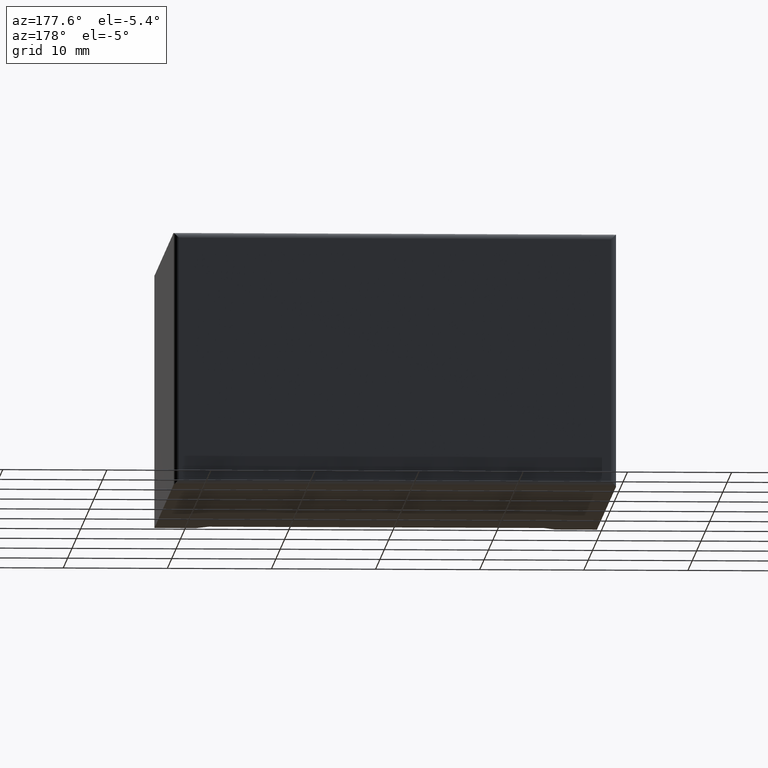
[diagram: clean part render]
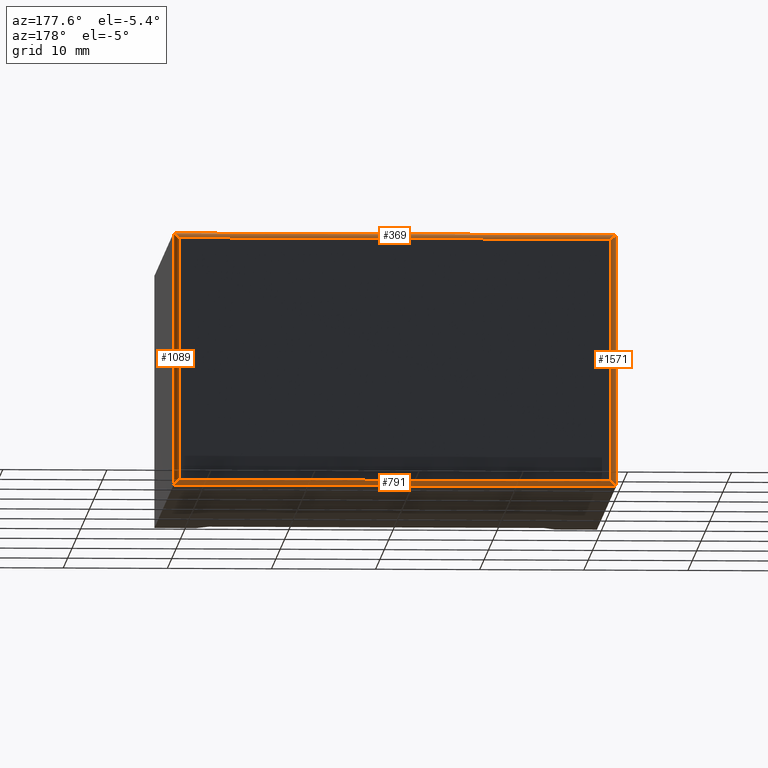
[diagram: same view with one multi-face feature highlighted, each face labeled with its STEP entity id]
A machine part, auxiliary view. The highlighted faces form ONE feature: a constant-radius fillet chain: 4 tangent blend faces with common blend radius 0.5 mm. The faces share edges in the B-rep.
Their STEP definitions:
[1] entity #1571 (Cylinder):
#37 = ORIENTED_EDGE ( 'NONE', *, *, #1860, .T. ) ;
#50 = CARTESIAN_POINT ( 'NONE',  ( 0.000000000000000000, 43.79999999999999716, 24.30000000000000071 ) ) ;
#57 =( BOUNDED_CURVE ( )  B_SPLINE_CURVE ( 3, ( #2199, #1073, #2671, #1986 ),
 .UNSPECIFIED., .F., .T. ) 
 B_SPLINE_CURVE_WITH_KNOTS ( ( 4, 4 ),
 ( 1.570796326794896780, 3.141592653589793116 ),
 .UNSPECIFIED. ) 
 CURVE ( )  GEOMETRIC_REPRESENTATION_ITEM ( )  RATIONAL_B_SPLINE_CURVE ( ( 1.000000000000000000, 0.8047378541243650485, 0.8047378541243650485, 1.000000000000000000 ) ) 
 REPRESENTATION_ITEM ( '' )  );
#102 = DIRECTION ( 'NONE',  ( -1.000000000000000000, 0.000000000000000000, 0.000000000000000000 ) ) ;
#133 = VERTEX_POINT ( 'NONE', #1943 ) ;
#157 = EDGE_CURVE ( 'NONE', #2770, #573, #57, .T. ) ;
#246 = CARTESIAN_POINT ( 'NONE',  ( 1.084202172485504434E-16, 44.09289321881345103, 24.30000000000000426 ) ) ;
#468 = CARTESIAN_POINT ( 'NONE',  ( 0.000000000000000000, 43.79999999999999716, 24.30000000000000071 ) ) ;
#508 = CARTESIAN_POINT ( 'NONE',  ( 0.5000000000000000000, 44.29999999999999716, 0.5000000000000004441 ) ) ;
#573 = VERTEX_POINT ( 'NONE', #1119 ) ;
#635 = CARTESIAN_POINT ( 'NONE',  ( 0.5000000000000000000, 44.29999999999999716, 23.80000000000000071 ) ) ;
#689 = CARTESIAN_POINT ( 'NONE',  ( 0.2071067811865475727, 44.29999999999999005, 24.09289321881344748 ) ) ;
#711 = EDGE_LOOP ( 'NONE', ( #37, #2759, #924, #2908 ) ) ;
#740 = CYLINDRICAL_SURFACE ( 'NONE', #2274, 0.5000000000000000000 ) ;
#924 = ORIENTED_EDGE ( 'NONE', *, *, #157, .T. ) ;
#994 = DIRECTION ( 'NONE',  ( 0.000000000000000000, 0.000000000000000000, -1.000000000000000000 ) ) ;
#997 = VERTEX_POINT ( 'NONE', #635 ) ;
#1073 = CARTESIAN_POINT ( 'NONE',  ( 0.2071067811865475172, 44.30000000000000426, 0.2071067811865479058 ) ) ;
#1119 = CARTESIAN_POINT ( 'NONE',  ( 0.000000000000000000, 43.79999999999999716, 0.000000000000000000 ) ) ;
#1138 = CARTESIAN_POINT ( 'NONE',  ( 0.5000000000000000000, 44.29999999999999716, 24.30000000000000071 ) ) ;
#1275 = LINE ( 'NONE', #50, #2437 ) ;
#1430 =( BOUNDED_CURVE ( )  B_SPLINE_CURVE ( 3, ( #468, #246, #689, #2301 ),
 .UNSPECIFIED., .F., .T. ) 
 B_SPLINE_CURVE_WITH_KNOTS ( ( 4, 4 ),
 ( 0.000000000000000000, 1.570796326794896558 ),
 .UNSPECIFIED. ) 
 CURVE ( )  GEOMETRIC_REPRESENTATION_ITEM ( )  RATIONAL_B_SPLINE_CURVE ( ( 1.000000000000000000, 0.8047378541243649375, 0.8047378541243649375, 1.000000000000000000 ) ) 
 REPRESENTATION_ITEM ( '' )  );
#1440 = LINE ( 'NONE', #1138, #1548 ) ;
#1503 = DIRECTION ( 'NONE',  ( 0.000000000000000000, 0.000000000000000000, -1.000000000000000000 ) ) ;
#1548 = VECTOR ( 'NONE', #2063, 1000.000000000000000 ) ;
#1571 = ADVANCED_FACE ( 'NONE', ( #1882 ), #740, .T. ) ;
#1694 = EDGE_CURVE ( 'NONE', #2770, #997, #1440, .T. ) ;
#1860 = EDGE_CURVE ( 'NONE', #133, #997, #1430, .T. ) ;
#1882 = FACE_OUTER_BOUND ( 'NONE', #711, .T. ) ;
#1943 = CARTESIAN_POINT ( 'NONE',  ( 0.000000000000000000, 43.79999999999999716, 24.30000000000000071 ) ) ;
#1986 = CARTESIAN_POINT ( 'NONE',  ( 0.000000000000000000, 43.79999999999999716, 0.000000000000000000 ) ) ;
#2063 = DIRECTION ( 'NONE',  ( -0.000000000000000000, -0.000000000000000000, 1.000000000000000000 ) ) ;
#2153 = CARTESIAN_POINT ( 'NONE',  ( 0.5000000000000000000, 43.79999999999999716, 24.30000000000000071 ) ) ;
#2199 = CARTESIAN_POINT ( 'NONE',  ( 0.5000000000000000000, 44.29999999999999716, 0.5000000000000004441 ) ) ;
#2274 = AXIS2_PLACEMENT_3D ( 'NONE', #2153, #994, #102 ) ;
#2301 = CARTESIAN_POINT ( 'NONE',  ( 0.5000000000000000000, 44.29999999999999716, 23.80000000000000071 ) ) ;
#2437 = VECTOR ( 'NONE', #1503, 1000.000000000000000 ) ;
#2443 = EDGE_CURVE ( 'NONE', #133, #573, #1275, .T. ) ;
#2671 = CARTESIAN_POINT ( 'NONE',  ( 1.442892915397364602E-16, 44.09289321881344392, 5.779701605339383077E-16 ) ) ;
#2759 = ORIENTED_EDGE ( 'NONE', *, *, #1694, .F. ) ;
#2770 = VERTEX_POINT ( 'NONE', #508 ) ;
#2908 = ORIENTED_EDGE ( 'NONE', *, *, #2443, .F. ) ;
[2] entity #791 (Cylinder):
#57 =( BOUNDED_CURVE ( )  B_SPLINE_CURVE ( 3, ( #2199, #1073, #2671, #1986 ),
 .UNSPECIFIED., .F., .T. ) 
 B_SPLINE_CURVE_WITH_KNOTS ( ( 4, 4 ),
 ( 1.570796326794896780, 3.141592653589793116 ),
 .UNSPECIFIED. ) 
 CURVE ( )  GEOMETRIC_REPRESENTATION_ITEM ( )  RATIONAL_B_SPLINE_CURVE ( ( 1.000000000000000000, 0.8047378541243650485, 0.8047378541243650485, 1.000000000000000000 ) ) 
 REPRESENTATION_ITEM ( '' )  );
#89 = DIRECTION ( 'NONE',  ( 0.000000000000000000, 0.000000000000000000, -1.000000000000000000 ) ) ;
#157 = EDGE_CURVE ( 'NONE', #2770, #573, #57, .T. ) ;
#215 = VECTOR ( 'NONE', #1635, 1000.000000000000000 ) ;
#328 = DIRECTION ( 'NONE',  ( 1.000000000000000000, 0.000000000000000000, 0.000000000000000000 ) ) ;
#371 = VECTOR ( 'NONE', #893, 1000.000000000000000 ) ;
#508 = CARTESIAN_POINT ( 'NONE',  ( 0.5000000000000000000, 44.29999999999999716, 0.5000000000000004441 ) ) ;
#573 = VERTEX_POINT ( 'NONE', #1119 ) ;
#632 = VERTEX_POINT ( 'NONE', #1597 ) ;
#779 =( BOUNDED_CURVE ( )  B_SPLINE_CURVE ( 3, ( #2812, #1401, #2525, #1901 ),
 .UNSPECIFIED., .F., .T. ) 
 B_SPLINE_CURVE_WITH_KNOTS ( ( 4, 4 ),
 ( 4.712388980384689674, 6.283185307179586232 ),
 .UNSPECIFIED. ) 
 CURVE ( )  GEOMETRIC_REPRESENTATION_ITEM ( )  RATIONAL_B_SPLINE_CURVE ( ( 1.000000000000000000, 0.8047378541243649375, 0.8047378541243649375, 1.000000000000000000 ) ) 
 REPRESENTATION_ITEM ( '' )  );
#791 = ADVANCED_FACE ( 'NONE', ( #2577 ), #2386, .T. ) ;
#893 = DIRECTION ( 'NONE',  ( 1.000000000000000000, -0.000000000000000000, -0.000000000000000000 ) ) ;
#897 = EDGE_CURVE ( 'NONE', #1202, #2770, #2334, .T. ) ;
#1073 = CARTESIAN_POINT ( 'NONE',  ( 0.2071067811865475172, 44.30000000000000426, 0.2071067811865479058 ) ) ;
#1119 = CARTESIAN_POINT ( 'NONE',  ( 0.000000000000000000, 43.79999999999999716, 0.000000000000000000 ) ) ;
#1120 = ORIENTED_EDGE ( 'NONE', *, *, #157, .F. ) ;
#1121 = ORIENTED_EDGE ( 'NONE', *, *, #1241, .F. ) ;
#1202 = VERTEX_POINT ( 'NONE', #1864 ) ;
#1241 = EDGE_CURVE ( 'NONE', #573, #632, #2796, .T. ) ;
#1401 = CARTESIAN_POINT ( 'NONE',  ( 42.29289321881346098, 44.29999999999999005, 0.2071067811865480723 ) ) ;
#1427 = CARTESIAN_POINT ( 'NONE',  ( 0.000000000000000000, 44.29999999999999716, 0.5000000000000004441 ) ) ;
#1597 = CARTESIAN_POINT ( 'NONE',  ( 42.50000000000000000, 43.79999999999999716, 0.000000000000000000 ) ) ;
#1635 = DIRECTION ( 'NONE',  ( -1.000000000000000000, 0.000000000000000000, 0.000000000000000000 ) ) ;
#1712 = ORIENTED_EDGE ( 'NONE', *, *, #2558, .T. ) ;
#1864 = CARTESIAN_POINT ( 'NONE',  ( 42.00000000000000000, 44.29999999999999716, 0.5000000000000004441 ) ) ;
#1901 = CARTESIAN_POINT ( 'NONE',  ( 42.50000000000000000, 43.79999999999999716, 0.000000000000000000 ) ) ;
#1932 = CARTESIAN_POINT ( 'NONE',  ( 42.50000000000000000, 43.79999999999999716, 0.000000000000000000 ) ) ;
#1935 = AXIS2_PLACEMENT_3D ( 'NONE', #2903, #328, #89 ) ;
#1986 = CARTESIAN_POINT ( 'NONE',  ( 0.000000000000000000, 43.79999999999999716, 0.000000000000000000 ) ) ;
#2087 = ORIENTED_EDGE ( 'NONE', *, *, #897, .F. ) ;
#2199 = CARTESIAN_POINT ( 'NONE',  ( 0.5000000000000000000, 44.29999999999999716, 0.5000000000000004441 ) ) ;
#2334 = LINE ( 'NONE', #1427, #215 ) ;
#2386 = CYLINDRICAL_SURFACE ( 'NONE', #1935, 0.5000000000000000000 ) ;
#2525 = CARTESIAN_POINT ( 'NONE',  ( 42.50000000000000000, 44.09289321881345103, 5.421010862427522170E-16 ) ) ;
#2558 = EDGE_CURVE ( 'NONE', #1202, #632, #779, .T. ) ;
#2577 = FACE_OUTER_BOUND ( 'NONE', #2665, .T. ) ;
#2665 = EDGE_LOOP ( 'NONE', ( #1712, #1121, #1120, #2087 ) ) ;
#2671 = CARTESIAN_POINT ( 'NONE',  ( 1.442892915397364602E-16, 44.09289321881344392, 5.779701605339383077E-16 ) ) ;
#2770 = VERTEX_POINT ( 'NONE', #508 ) ;
#2796 = LINE ( 'NONE', #1932, #371 ) ;
#2812 = CARTESIAN_POINT ( 'NONE',  ( 42.00000000000000000, 44.29999999999999716, 0.5000000000000004441 ) ) ;
#2903 = CARTESIAN_POINT ( 'NONE',  ( 0.000000000000000000, 43.79999999999999716, 0.5000000000000004441 ) ) ;
[3] entity #1089 (Cylinder):
#4 = ORIENTED_EDGE ( 'NONE', *, *, #1982, .F. ) ;
#290 = LINE ( 'NONE', #758, #2482 ) ;
#362 = VECTOR ( 'NONE', #751, 1000.000000000000000 ) ;
#368 = CARTESIAN_POINT ( 'NONE',  ( 42.00000000000000000, 44.29999999999999716, 23.80000000000000071 ) ) ;
#503 = VERTEX_POINT ( 'NONE', #1577 ) ;
#507 = CARTESIAN_POINT ( 'NONE',  ( 42.50000000000000000, 43.79999999999999716, 24.30000000000000071 ) ) ;
#632 = VERTEX_POINT ( 'NONE', #1597 ) ;
#636 = CARTESIAN_POINT ( 'NONE',  ( 42.50000000000000000, 44.09289321881345103, 24.30000000000000426 ) ) ;
#638 = DIRECTION ( 'NONE',  ( -1.000000000000000000, 0.000000000000000000, 0.000000000000000000 ) ) ;
#644 = ORIENTED_EDGE ( 'NONE', *, *, #755, .F. ) ;
#662 = VERTEX_POINT ( 'NONE', #1820 ) ;
#751 = DIRECTION ( 'NONE',  ( -0.000000000000000000, -0.000000000000000000, 1.000000000000000000 ) ) ;
#755 = EDGE_CURVE ( 'NONE', #632, #503, #1672, .T. ) ;
#758 = CARTESIAN_POINT ( 'NONE',  ( 42.00000000000000000, 44.29999999999999716, 24.30000000000000071 ) ) ;
#779 =( BOUNDED_CURVE ( )  B_SPLINE_CURVE ( 3, ( #2812, #1401, #2525, #1901 ),
 .UNSPECIFIED., .F., .T. ) 
 B_SPLINE_CURVE_WITH_KNOTS ( ( 4, 4 ),
 ( 4.712388980384689674, 6.283185307179586232 ),
 .UNSPECIFIED. ) 
 CURVE ( )  GEOMETRIC_REPRESENTATION_ITEM ( )  RATIONAL_B_SPLINE_CURVE ( ( 1.000000000000000000, 0.8047378541243649375, 0.8047378541243649375, 1.000000000000000000 ) ) 
 REPRESENTATION_ITEM ( '' )  );
#862 = CARTESIAN_POINT ( 'NONE',  ( 42.29289321881346098, 44.29999999999999005, 24.09289321881344748 ) ) ;
#1089 = ADVANCED_FACE ( 'NONE', ( #2963 ), #1757, .T. ) ;
#1094 = CARTESIAN_POINT ( 'NONE',  ( 42.50000000000000000, 43.79999999999999716, 24.30000000000000071 ) ) ;
#1202 = VERTEX_POINT ( 'NONE', #1864 ) ;
#1242 = EDGE_CURVE ( 'NONE', #662, #1202, #290, .T. ) ;
#1305 = ORIENTED_EDGE ( 'NONE', *, *, #2558, .F. ) ;
#1401 = CARTESIAN_POINT ( 'NONE',  ( 42.29289321881346098, 44.29999999999999005, 0.2071067811865480723 ) ) ;
#1577 = CARTESIAN_POINT ( 'NONE',  ( 42.50000000000000000, 43.79999999999999716, 24.30000000000000071 ) ) ;
#1597 = CARTESIAN_POINT ( 'NONE',  ( 42.50000000000000000, 43.79999999999999716, 0.000000000000000000 ) ) ;
#1672 = LINE ( 'NONE', #507, #362 ) ;
#1757 = CYLINDRICAL_SURFACE ( 'NONE', #2777, 0.5000000000000004441 ) ;
#1798 = DIRECTION ( 'NONE',  ( 0.000000000000000000, 0.000000000000000000, -1.000000000000000000 ) ) ;
#1820 = CARTESIAN_POINT ( 'NONE',  ( 42.00000000000000000, 44.29999999999999716, 23.80000000000000071 ) ) ;
#1825 = DIRECTION ( 'NONE',  ( 0.000000000000000000, 0.000000000000000000, -1.000000000000000000 ) ) ;
#1864 = CARTESIAN_POINT ( 'NONE',  ( 42.00000000000000000, 44.29999999999999716, 0.5000000000000004441 ) ) ;
#1901 = CARTESIAN_POINT ( 'NONE',  ( 42.50000000000000000, 43.79999999999999716, 0.000000000000000000 ) ) ;
#1982 = EDGE_CURVE ( 'NONE', #503, #662, #2784, .T. ) ;
#2271 = ORIENTED_EDGE ( 'NONE', *, *, #1242, .F. ) ;
#2482 = VECTOR ( 'NONE', #1825, 1000.000000000000000 ) ;
#2525 = CARTESIAN_POINT ( 'NONE',  ( 42.50000000000000000, 44.09289321881345103, 5.421010862427522170E-16 ) ) ;
#2558 = EDGE_CURVE ( 'NONE', #1202, #632, #779, .T. ) ;
#2777 = AXIS2_PLACEMENT_3D ( 'NONE', #2868, #1798, #638 ) ;
#2784 =( BOUNDED_CURVE ( )  B_SPLINE_CURVE ( 3, ( #1094, #636, #862, #368 ),
 .UNSPECIFIED., .F., .T. ) 
 B_SPLINE_CURVE_WITH_KNOTS ( ( 4, 4 ),
 ( 3.141592653589793116, 4.712388980384689674 ),
 .UNSPECIFIED. ) 
 CURVE ( )  GEOMETRIC_REPRESENTATION_ITEM ( )  RATIONAL_B_SPLINE_CURVE ( ( 1.000000000000000000, 0.8047378541243649375, 0.8047378541243649375, 1.000000000000000000 ) ) 
 REPRESENTATION_ITEM ( '' )  );
#2812 = CARTESIAN_POINT ( 'NONE',  ( 42.00000000000000000, 44.29999999999999716, 0.5000000000000004441 ) ) ;
#2868 = CARTESIAN_POINT ( 'NONE',  ( 42.00000000000000000, 43.79999999999999716, 24.30000000000000071 ) ) ;
#2963 = FACE_OUTER_BOUND ( 'NONE', #2969, .T. ) ;
#2969 = EDGE_LOOP ( 'NONE', ( #1305, #2271, #4, #644 ) ) ;
[4] entity #369 (Cylinder):
#25 = FACE_OUTER_BOUND ( 'NONE', #81, .T. ) ;
#81 = EDGE_LOOP ( 'NONE', ( #2212, #809, #1048, #748 ) ) ;
#133 = VERTEX_POINT ( 'NONE', #1943 ) ;
#246 = CARTESIAN_POINT ( 'NONE',  ( 1.084202172485504434E-16, 44.09289321881345103, 24.30000000000000426 ) ) ;
#305 = DIRECTION ( 'NONE',  ( -1.000000000000000000, 0.000000000000000000, 0.000000000000000000 ) ) ;
#342 = CARTESIAN_POINT ( 'NONE',  ( 0.000000000000000000, 43.79999999999999716, 24.30000000000000071 ) ) ;
#368 = CARTESIAN_POINT ( 'NONE',  ( 42.00000000000000000, 44.29999999999999716, 23.80000000000000071 ) ) ;
#369 = ADVANCED_FACE ( 'NONE', ( #25 ), #2557, .T. ) ;
#468 = CARTESIAN_POINT ( 'NONE',  ( 0.000000000000000000, 43.79999999999999716, 24.30000000000000071 ) ) ;
#503 = VERTEX_POINT ( 'NONE', #1577 ) ;
#515 = CARTESIAN_POINT ( 'NONE',  ( 0.000000000000000000, 43.79999999999999716, 23.80000000000000071 ) ) ;
#635 = CARTESIAN_POINT ( 'NONE',  ( 0.5000000000000000000, 44.29999999999999716, 23.80000000000000071 ) ) ;
#636 = CARTESIAN_POINT ( 'NONE',  ( 42.50000000000000000, 44.09289321881345103, 24.30000000000000426 ) ) ;
#662 = VERTEX_POINT ( 'NONE', #1820 ) ;
#689 = CARTESIAN_POINT ( 'NONE',  ( 0.2071067811865475727, 44.29999999999999005, 24.09289321881344748 ) ) ;
#748 = ORIENTED_EDGE ( 'NONE', *, *, #2819, .F. ) ;
#780 = DIRECTION ( 'NONE',  ( 1.000000000000000000, -0.000000000000000000, -0.000000000000000000 ) ) ;
#802 = EDGE_CURVE ( 'NONE', #997, #662, #2643, .T. ) ;
#809 = ORIENTED_EDGE ( 'NONE', *, *, #802, .F. ) ;
#862 = CARTESIAN_POINT ( 'NONE',  ( 42.29289321881346098, 44.29999999999999005, 24.09289321881344748 ) ) ;
#997 = VERTEX_POINT ( 'NONE', #635 ) ;
#1048 = ORIENTED_EDGE ( 'NONE', *, *, #1860, .F. ) ;
#1094 = CARTESIAN_POINT ( 'NONE',  ( 42.50000000000000000, 43.79999999999999716, 24.30000000000000071 ) ) ;
#1234 = DIRECTION ( 'NONE',  ( 0.000000000000000000, 0.000000000000000000, 1.000000000000000000 ) ) ;
#1430 =( BOUNDED_CURVE ( )  B_SPLINE_CURVE ( 3, ( #468, #246, #689, #2301 ),
 .UNSPECIFIED., .F., .T. ) 
 B_SPLINE_CURVE_WITH_KNOTS ( ( 4, 4 ),
 ( 0.000000000000000000, 1.570796326794896558 ),
 .UNSPECIFIED. ) 
 CURVE ( )  GEOMETRIC_REPRESENTATION_ITEM ( )  RATIONAL_B_SPLINE_CURVE ( ( 1.000000000000000000, 0.8047378541243649375, 0.8047378541243649375, 1.000000000000000000 ) ) 
 REPRESENTATION_ITEM ( '' )  );
#1577 = CARTESIAN_POINT ( 'NONE',  ( 42.50000000000000000, 43.79999999999999716, 24.30000000000000071 ) ) ;
#1724 = CARTESIAN_POINT ( 'NONE',  ( 0.000000000000000000, 44.29999999999999716, 23.80000000000000071 ) ) ;
#1820 = CARTESIAN_POINT ( 'NONE',  ( 42.00000000000000000, 44.29999999999999716, 23.80000000000000071 ) ) ;
#1860 = EDGE_CURVE ( 'NONE', #133, #997, #1430, .T. ) ;
#1943 = CARTESIAN_POINT ( 'NONE',  ( 0.000000000000000000, 43.79999999999999716, 24.30000000000000071 ) ) ;
#1982 = EDGE_CURVE ( 'NONE', #503, #662, #2784, .T. ) ;
#2212 = ORIENTED_EDGE ( 'NONE', *, *, #1982, .T. ) ;
#2220 = VECTOR ( 'NONE', #780, 1000.000000000000000 ) ;
#2301 = CARTESIAN_POINT ( 'NONE',  ( 0.5000000000000000000, 44.29999999999999716, 23.80000000000000071 ) ) ;
#2385 = VECTOR ( 'NONE', #2976, 1000.000000000000000 ) ;
#2479 = LINE ( 'NONE', #342, #2385 ) ;
#2557 = CYLINDRICAL_SURFACE ( 'NONE', #2978, 0.5000000000000004441 ) ;
#2643 = LINE ( 'NONE', #1724, #2220 ) ;
#2784 =( BOUNDED_CURVE ( )  B_SPLINE_CURVE ( 3, ( #1094, #636, #862, #368 ),
 .UNSPECIFIED., .F., .T. ) 
 B_SPLINE_CURVE_WITH_KNOTS ( ( 4, 4 ),
 ( 3.141592653589793116, 4.712388980384689674 ),
 .UNSPECIFIED. ) 
 CURVE ( )  GEOMETRIC_REPRESENTATION_ITEM ( )  RATIONAL_B_SPLINE_CURVE ( ( 1.000000000000000000, 0.8047378541243649375, 0.8047378541243649375, 1.000000000000000000 ) ) 
 REPRESENTATION_ITEM ( '' )  );
#2819 = EDGE_CURVE ( 'NONE', #503, #133, #2479, .T. ) ;
#2976 = DIRECTION ( 'NONE',  ( -1.000000000000000000, 0.000000000000000000, 0.000000000000000000 ) ) ;
#2978 = AXIS2_PLACEMENT_3D ( 'NONE', #515, #305, #1234 ) ;